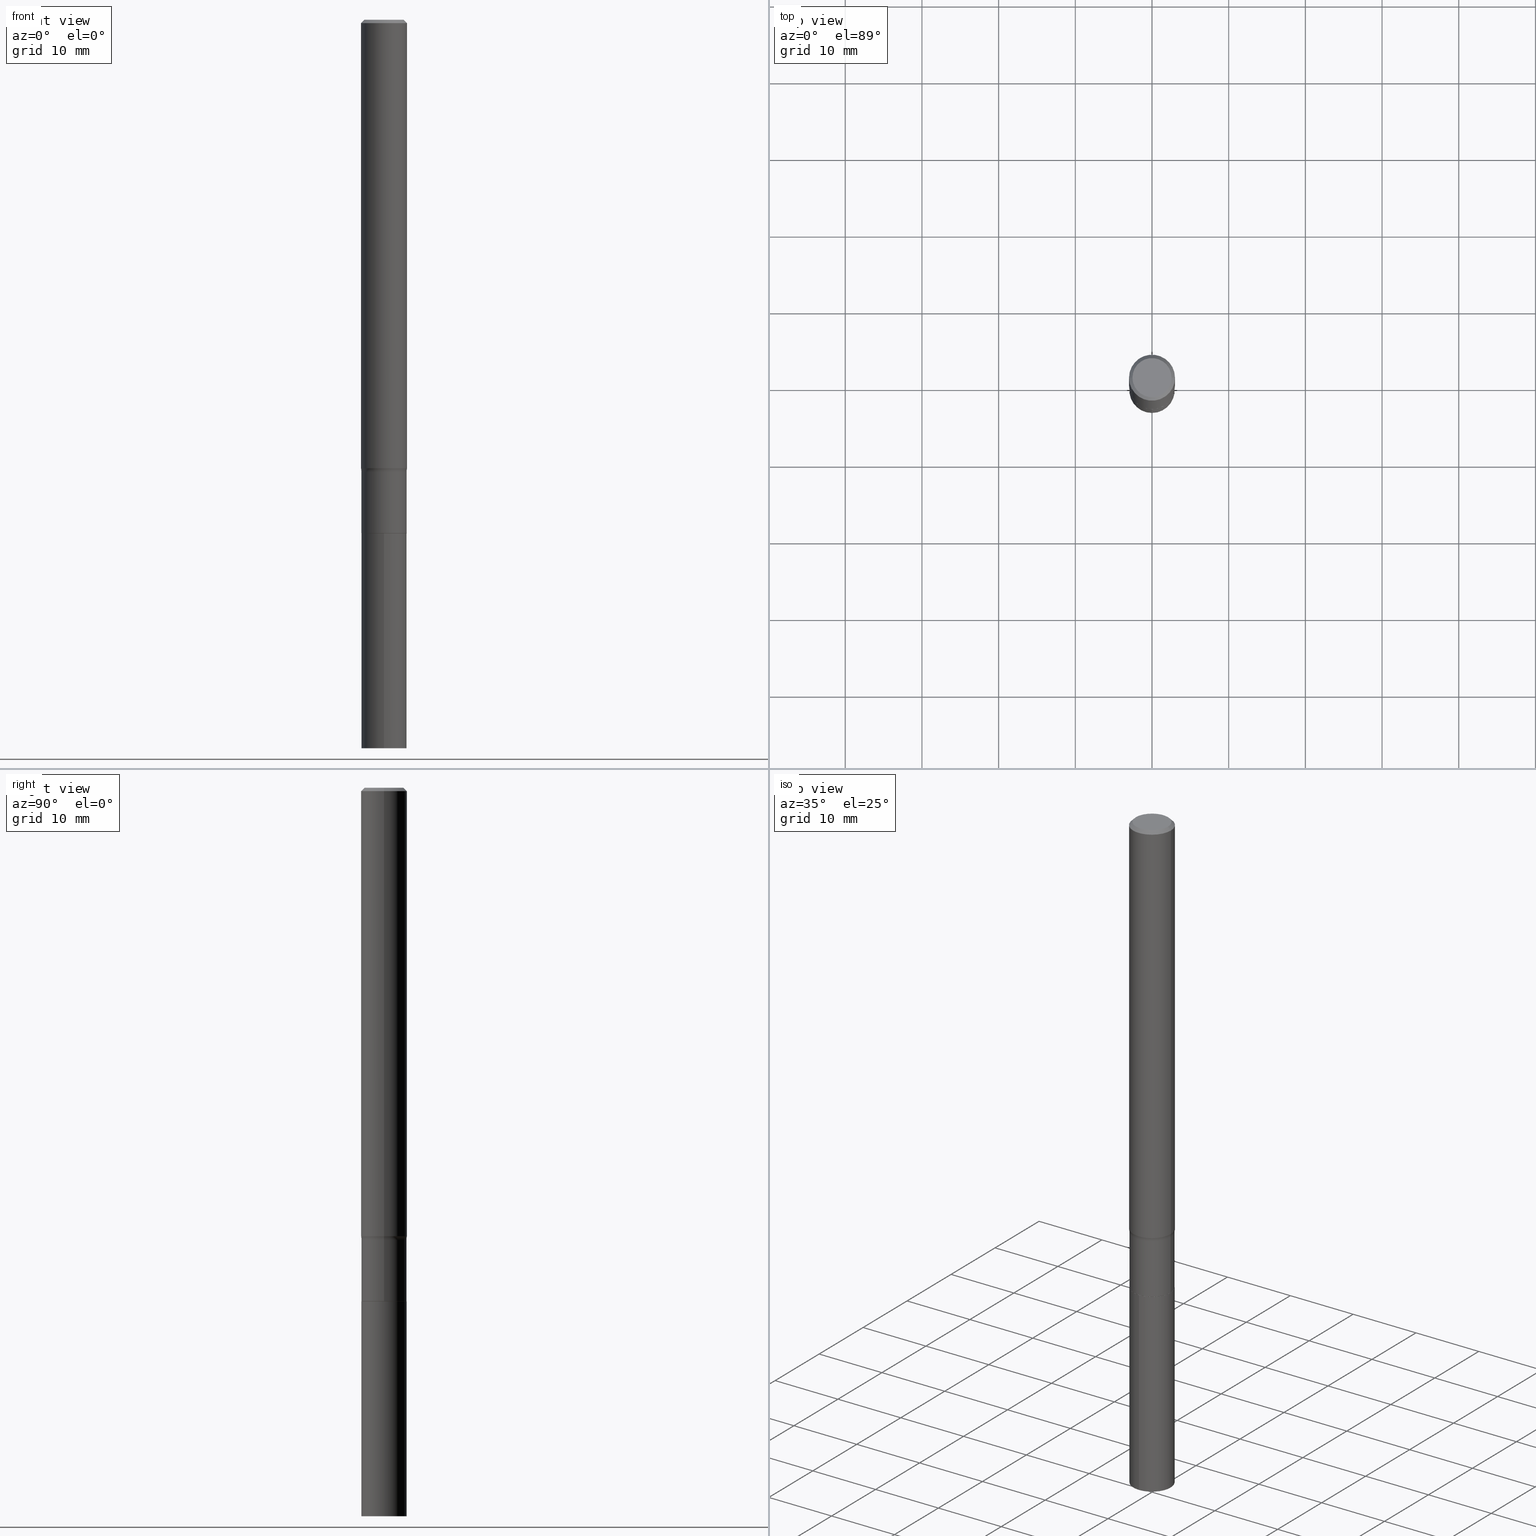
[diagram: canonical four-view strip — front | top / right | iso, engineering-drawing reading convention]
A machine part, canonical four-view strip (front | top / right | iso — engineering-drawing reading convention). The complete STEP part file that produces these views, byte-faithful:
ISO-10303-21;
HEADER;
FILE_DESCRIPTION (( 'STEP AP203' ),
    '1' );
FILE_NAME ('67845.STEP',
    '2024-04-19T16:43:05',
    ( '' ),
    ( '' ),
    'SwSTEP 2.0',
    'SolidWorks 2023',
    '' );
FILE_SCHEMA (( 'CONFIG_CONTROL_DESIGN' ));
ENDSEC;

DATA;
#1 = CARTESIAN_POINT ( 'NONE',  ( -0.1156500000000000028, -8.382500431551745365E-15, -2.636200000000000099 ) ) ;
#2 = DIRECTION ( 'NONE',  ( 1.000000000000000000, -6.982962677686273810E-15, 0.000000000000000000 ) ) ;
#3 = ORIENTED_EDGE ( 'NONE', *, *, #358, .T. ) ;
#4 = CARTESIAN_POINT ( 'NONE',  ( 6.446744866865257163E-29, -9.204243105458301447E-15, -2.636200000000000099 ) ) ;
#5 = VERTEX_POINT ( 'NONE', #296 ) ;
#6 = AXIS2_PLACEMENT_3D ( 'NONE', #98, #130, #60 ) ;
#7 = TOROIDAL_SURFACE ( 'NONE', #92, 0.1961499999999999633, 0.07999999999999998779 ) ;
#8 = AXIS2_PLACEMENT_3D ( 'NONE', #76, #142, #394 ) ;
#9 = DIRECTION ( 'NONE',  ( 1.000000000000000000, -6.982962677686265922E-15, 4.876176775795935232E-29 ) ) ;
#10 = EDGE_LOOP ( 'NONE', ( #198, #72, #467, #400 ) ) ;
#11 = CARTESIAN_POINT ( 'NONE',  ( -0.1003850000000000159, 7.319105043583386689E-16, -2.868857591683090262E-17 ) ) ;
#12 = PRODUCT_RELATED_PRODUCT_CATEGORY ( 'detail', '', ( #149 ) ) ;
#13 = DIRECTION ( 'NONE',  ( 2.445468806185136597E-29, -3.491481338843145583E-15, -1.000000000000000000 ) ) ;
#14 = PERSON_AND_ORGANIZATION ( #65, #177 ) ;
#15 = AXIS2_PLACEMENT_3D ( 'NONE', #4, #293, #261 ) ;
#16 = LINE ( 'NONE', #88, #391 ) ;
#17 = CALENDAR_DATE ( 2024, 19, 4 ) ;
#18 = CC_DESIGN_PERSON_AND_ORGANIZATION_ASSIGNMENT ( #14, #123, ( #149 ) ) ;
#19 = CARTESIAN_POINT ( 'NONE',  ( 0.000000000000000000, 0.000000000000000000, 0.000000000000000000 ) ) ;
#20 = CARTESIAN_POINT ( 'NONE',  ( -0.1156500000000000028, -8.379851204377634953E-15, -2.636200000000000099 ) ) ;
#21 = SECURITY_CLASSIFICATION_LEVEL ( 'unclassified' ) ;
#22 = VERTEX_POINT ( 'NONE', #292 ) ;
#23 = DIRECTION ( 'NONE',  ( 1.000000000000000000, -6.982962677686269866E-15, 0.000000000000000000 ) ) ;
#24 = VECTOR ( 'NONE', #262, 39.37007874015748143 ) ;
#25 = DIRECTION ( 'NONE',  ( 0.000000000000000000, 0.000000000000000000, 1.000000000000000000 ) ) ;
#26 = LINE ( 'NONE', #277, #244 ) ;
#27 = CARTESIAN_POINT ( 'NONE',  ( 7.015701749847187307E-46, -1.001656274515824970E-31, -2.868857591682589212E-17 ) ) ;
#28 = ORIENTED_EDGE ( 'NONE', *, *, #166, .T. ) ;
#29 = FACE_OUTER_BOUND ( 'NONE', #438, .T. ) ;
#30 = AXIS2_PLACEMENT_3D ( 'NONE', #336, #13, #370 ) ;
#31 = ORIENTED_EDGE ( 'NONE', *, *, #253, .F. ) ;
#32 = DIRECTION ( 'NONE',  ( -2.439470355359473370E-29, 3.500071461836113425E-15, 1.000000000000000000 ) ) ;
#33 = EDGE_CURVE ( 'NONE', #215, #22, #85, .T. ) ;
#34 = ORIENTED_EDGE ( 'NONE', *, *, #419, .F. ) ;
#35 = CARTESIAN_POINT ( 'NONE',  ( 7.015701749847187307E-46, -1.001656274515824970E-31, -2.868857591682589212E-17 ) ) ;
#36 = ORIENTED_EDGE ( 'NONE', *, *, #434, .T. ) ;
#37 = CARTESIAN_POINT ( 'NONE',  ( -8.110711150131954537E-16, -0.1161500000000092042, -2.636199999999999655 ) ) ;
#38 = ORIENTED_EDGE ( 'NONE', *, *, #408, .F. ) ;
#39 = AXIS2_PLACEMENT_3D ( 'NONE', #19, #25, #160 ) ;
#40 = EDGE_CURVE ( 'NONE', #148, #22, #465, .T. ) ;
#41 = DIRECTION ( 'NONE',  ( -2.438088387897960049E-29, 3.491481338843145188E-15, 1.000000000000000000 ) ) ;
#42 = DIRECTION ( 'NONE',  ( -2.439470355359473651E-29, 3.500071461836113425E-15, 1.000000000000000000 ) ) ;
#43 = ORIENTED_EDGE ( 'NONE', *, *, #172, .F. ) ;
#44 = CC_DESIGN_PERSON_AND_ORGANIZATION_ASSIGNMENT ( #163, #268, ( #330 ) ) ;
#45 = CARTESIAN_POINT ( 'NONE',  ( -0.1161500000000000171, -7.826769944134901983E-15, -2.635699999999999932 ) ) ;
#46 = FACE_OUTER_BOUND ( 'NONE', #175, .T. ) ;
#47 = AXIS2_PLACEMENT_3D ( 'NONE', #276, #237, #381 ) ;
#48 = CARTESIAN_POINT ( 'NONE',  ( 6.446744866865257163E-29, -9.204243105458301447E-15, -2.636200000000000099 ) ) ;
#49 = DIRECTION ( 'NONE',  ( 6.982962677686265922E-15, 1.000000000000000000, -3.500071461836113425E-15 ) ) ;
#50 = EDGE_CURVE ( 'NONE', #254, #246, #94, .T. ) ;
#51 = CARTESIAN_POINT ( 'NONE',  ( 6.446744866865257163E-29, -9.204243105458301447E-15, -2.636200000000000099 ) ) ;
#52 = CARTESIAN_POINT ( 'NONE',  ( 9.139920139182118548E-29, -1.306832199932537301E-14, -3.740200000000000635 ) ) ;
#53 = COORDINATED_UNIVERSAL_TIME_OFFSET ( 5, 0, .BEHIND. ) ;
#54 = ADVANCED_FACE ( 'NONE', ( #109 ), #217, .F. ) ;
#55 = CIRCLE ( 'NONE', #99, 0.1181000000000002603 ) ;
#56 = CYLINDRICAL_SURFACE ( 'NONE', #454, 0.1181000000000001354 ) ;
#57 = CARTESIAN_POINT ( 'NONE',  ( -8.110711150131686325E-16, -0.1161500000000130761, -3.740200000000000191 ) ) ;
#58 = PERSON_AND_ORGANIZATION_ROLE ( 'design_supplier' ) ;
#59 = MANIFOLD_SOLID_BREP ( 'Body-Move/Copy2[2]', #201 ) ;
#60 = DIRECTION ( 'NONE',  ( -1.000000000000000000, 6.982962677686267499E-15, 0.000000000000000000 ) ) ;
#61 = EDGE_CURVE ( 'NONE', #393, #148, #333, .T. ) ;
#62 = LINE ( 'NONE', #241, #460 ) ;
#63 = AXIS2_PLACEMENT_3D ( 'NONE', #78, #334, #402 ) ;
#64 = CARTESIAN_POINT ( 'NONE',  ( 0.000000000000000000, 0.000000000000000000, 0.000000000000000000 ) ) ;
#65 = PERSON ( 'UNSPECIFIED', 'UNSPECIFIED', 'UNSPECIFIED', ('UNSPECIFIED'), ('UNSPECIFIED'), ('UNSPECIFIED') ) ;
#66 = ORIENTED_EDGE ( 'NONE', *, *, #205, .T. ) ;
#67 = MANIFOLD_SOLID_BREP ( 'Body-Move/Copy2[1]', #135 ) ;
#68 = PLANE ( 'NONE',  #284 ) ;
#69 = AXIS2_PLACEMENT_3D ( 'NONE', #428, #146, #287 ) ;
#70 = LOCAL_TIME ( 12, 43, 5.000000000000000000, #53 ) ;
#71 = DESIGN_CONTEXT ( 'detailed design', #452, 'design' ) ;
#72 = ORIENTED_EDGE ( 'NONE', *, *, #61, .T. ) ;
#73 = DIRECTION ( 'NONE',  ( -2.445468806185136597E-29, 3.491481338843145583E-15, 1.000000000000000000 ) ) ;
#74 = EDGE_CURVE ( 'NONE', #258, #367, #417, .T. ) ;
#75 = ORIENTED_EDGE ( 'NONE', *, *, #40, .F. ) ;
#76 = CARTESIAN_POINT ( 'NONE',  ( 4.332147990156998495E-31, -6.185159191760674092E-17, -0.01771500000000011954 ) ) ;
#77 = ORIENTED_EDGE ( 'NONE', *, *, #129, .T. ) ;
#78 = CARTESIAN_POINT ( 'NONE',  ( 5.674465817871991056E-29, -8.101633298651635617E-15, -2.320400000000000240 ) ) ;
#79 = ADVANCED_FACE ( 'NONE', ( #29 ), #138, .T. ) ;
#80 = DIRECTION ( 'NONE',  ( 1.000000000000000000, -6.982962677686267499E-15, 0.000000000000000000 ) ) ;
#81 = FACE_OUTER_BOUND ( 'NONE', #337, .T. ) ;
#82 = ORIENTED_EDGE ( 'NONE', *, *, #50, .T. ) ;
#83 = AXIS2_PLACEMENT_3D ( 'NONE', #375, #116, #445 ) ;
#84 = LOCAL_TIME ( 12, 43, 5.000000000000000000, #309 ) ;
#85 = CIRCLE ( 'NONE', #264, 0.1161500000000000032 ) ;
#86 = CARTESIAN_POINT ( 'NONE',  ( 0.000000000000000000, 0.000000000000000000, 0.000000000000000000 ) ) ;
#87 = DIRECTION ( 'NONE',  ( 1.000000000000000000, -6.982962677686264344E-15, 4.883557194083112340E-29 ) ) ;
#88 = CARTESIAN_POINT ( 'NONE',  ( 8.252953875854206811E-16, 0.1161499999999908023, -2.636200000000000543 ) ) ;
#89 = FACE_OUTER_BOUND ( 'NONE', #344, .T. ) ;
#90 = ORIENTED_EDGE ( 'NONE', *, *, #331, .F. ) ;
#91 = CC_DESIGN_DATE_AND_TIME_ASSIGNMENT ( #132, #174, ( #352 ) ) ;
#92 = AXIS2_PLACEMENT_3D ( 'NONE', #412, #379, #87 ) ;
#93 = FACE_OUTER_BOUND ( 'NONE', #466, .T. ) ;
#94 = CIRCLE ( 'NONE', #8, 0.1181000000000000105 ) ;
#95 = APPROVAL_DATE_TIME ( #240, #259 ) ;
#96 = FACE_OUTER_BOUND ( 'NONE', #436, .T. ) ;
#97 = DIRECTION ( 'NONE',  ( 2.438088387897960049E-29, -3.491481338843145188E-15, -1.000000000000000000 ) ) ;
#98 = CARTESIAN_POINT ( 'NONE',  ( 4.332147990156998495E-31, -6.185159191760674092E-17, -0.01771500000000011954 ) ) ;
#99 = AXIS2_PLACEMENT_3D ( 'NONE', #213, #382, #377 ) ;
#100 = PERSON_AND_ORGANIZATION ( #65, #177 ) ;
#101 = ORIENTED_EDGE ( 'NONE', *, *, #383, .T. ) ;
#102 = EDGE_LOOP ( 'NONE', ( #185, #431, #66, #288 ) ) ;
#103 = VECTOR ( 'NONE', #329, 39.37007874015748143 ) ;
#104 = EDGE_LOOP ( 'NONE', ( #223, #380, #167, #347 ) ) ;
#105 = APPROVAL_PERSON_ORGANIZATION ( #100, #342, #313 ) ;
#106 = ADVANCED_FACE ( 'NONE', ( #251 ), #68, .F. ) ;
#107 = CARTESIAN_POINT ( 'NONE',  ( 6.446744866865257163E-29, -9.204243105458301447E-15, -2.636200000000000099 ) ) ;
#108 = VERTEX_POINT ( 'NONE', #37 ) ;
#109 = FACE_OUTER_BOUND ( 'NONE', #395, .T. ) ;
#110 = EDGE_LOOP ( 'NONE', ( #90, #373, #157, #195 ) ) ;
#111 = CIRCLE ( 'NONE', #312, 0.1181000000000000105 ) ;
#112 =( GEOMETRIC_REPRESENTATION_CONTEXT ( 3 ) GLOBAL_UNCERTAINTY_ASSIGNED_CONTEXT ( ( #321 ) ) GLOBAL_UNIT_ASSIGNED_CONTEXT ( ( #270, #203, #343 ) ) REPRESENTATION_CONTEXT ( 'NONE', 'WORKASPACE' ) );
#113 = DIRECTION ( 'NONE',  ( -2.439470355359473651E-29, 3.500071461836113425E-15, 1.000000000000000000 ) ) ;
#114 = EDGE_CURVE ( 'NONE', #367, #254, #137, .T. ) ;
#115 = DIRECTION ( 'NONE',  ( -2.445468806185136597E-29, 3.491481338843145583E-15, 1.000000000000000000 ) ) ;
#116 = DIRECTION ( 'NONE',  ( -2.445468806185136597E-29, 3.491481338843145583E-15, 1.000000000000000000 ) ) ;
#117 = CIRCLE ( 'NONE', #369, 0.1161500000000000171 ) ;
#118 = AXIS2_PLACEMENT_3D ( 'NONE', #385, #42, #404 ) ;
#119 = LINE ( 'NONE', #188, #103 ) ;
#120 = EDGE_CURVE ( 'NONE', #393, #215, #320, .T. ) ;
#121 = APPROVAL_STATUS ( 'not_yet_approved' ) ;
#122 = CYLINDRICAL_SURFACE ( 'NONE', #441, 0.1161500000000000032 ) ;
#123 = PERSON_AND_ORGANIZATION_ROLE ( 'design_owner' ) ;
#124 = DIRECTION ( 'NONE',  ( 1.000000000000000000, -6.982962677686266711E-15, 4.876176775795936353E-29 ) ) ;
#125 = AXIS2_PLACEMENT_3D ( 'NONE', #435, #73, #399 ) ;
#126 = AXIS2_PLACEMENT_3D ( 'NONE', #208, #458, #279 ) ;
#127 = CARTESIAN_POINT ( 'NONE',  ( -0.1181000000000002326, -7.201187436172869166E-15, -2.302844445323487310 ) ) ;
#128 = DATE_TIME_ROLE ( 'creation_date' ) ;
#129 = EDGE_CURVE ( 'NONE', #405, #145, #378, .T. ) ;
#130 = DIRECTION ( 'NONE',  ( 2.445468806185136597E-29, -3.491481338843145583E-15, -1.000000000000000000 ) ) ;
#131 = FACE_OUTER_BOUND ( 'NONE', #361, .T. ) ;
#132 = DATE_AND_TIME ( #457, #84 ) ;
#133 = CIRCLE ( 'NONE', #199, 0.1156500000000000028 ) ;
#134 = COORDINATED_UNIVERSAL_TIME_OFFSET ( 5, 0, .BEHIND. ) ;
#135 = CLOSED_SHELL ( 'NONE', ( #79, #54, #275, #439 ) ) ;
#136 = CALENDAR_DATE ( 2024, 19, 4 ) ;
#137 = LINE ( 'NONE', #280, #468 ) ;
#138 = CYLINDRICAL_SURFACE ( 'NONE', #318, 0.1161500000000000032 ) ;
#139 = ORIENTED_EDGE ( 'NONE', *, *, #74, .F. ) ;
#140 = EDGE_CURVE ( 'NONE', #145, #290, #271, .T. ) ;
#141 = CIRCLE ( 'NONE', #349, 0.1161500000000000032 ) ;
#142 = DIRECTION ( 'NONE',  ( -2.445468806185136597E-29, 3.491481338843145583E-15, 1.000000000000000000 ) ) ;
#143 = CC_DESIGN_APPROVAL ( #342, ( #352 ) ) ;
#144 = DIRECTION ( 'NONE',  ( -2.445468806185136597E-29, 3.491481338843145583E-15, 1.000000000000000000 ) ) ;
#145 = VERTEX_POINT ( 'NONE', #357 ) ;
#146 = DIRECTION ( 'NONE',  ( -6.982962677686266711E-15, -1.000000000000000000, 3.491481338843145583E-15 ) ) ;
#147 = DIRECTION ( 'NONE',  ( 2.439470355359473370E-29, -3.500071461836113425E-15, -1.000000000000000000 ) ) ;
#148 = VERTEX_POINT ( 'NONE', #437 ) ;
#149 = PRODUCT ( '67845', '67845', '', ( #209 ) ) ;
#150 = LINE ( 'NONE', #291, #243 ) ;
#151 = EDGE_CURVE ( 'NONE', #5, #108, #141, .T. ) ;
#152 = CIRCLE ( 'NONE', #15, 0.1161500000000000032 ) ;
#153 = APPROVAL_PERSON_ORGANIZATION ( #169, #362, #206 ) ;
#154 = DIRECTION ( 'NONE',  ( -6.982962677686265922E-15, -1.000000000000000000, 4.703999989090422785E-15 ) ) ;
#155 = PRODUCT_DEFINITION_SHAPE ( 'NONE', 'NONE',  #401 ) ;
#156 = CYLINDRICAL_SURFACE ( 'NONE', #328, 0.1161499999999999894 ) ;
#157 = ORIENTED_EDGE ( 'NONE', *, *, #140, .T. ) ;
#158 = EDGE_CURVE ( 'NONE', #108, #5, #152, .T. ) ;
#159 = CARTESIAN_POINT ( 'NONE',  ( 4.332147990156998495E-31, -6.185159191760674092E-17, -0.01771500000000011954 ) ) ;
#160 = DIRECTION ( 'NONE',  ( 1.000000000000000000, 0.000000000000000000, 0.000000000000000000 ) ) ;
#161 = AXIS2_PLACEMENT_3D ( 'NONE', #233, #173, #245 ) ;
#162 = FACE_OUTER_BOUND ( 'NONE', #10, .T. ) ;
#163 = PERSON_AND_ORGANIZATION ( #65, #177 ) ;
#164 = CALENDAR_DATE ( 2024, 19, 4 ) ;
#165 = APPROVAL_STATUS ( 'not_yet_approved' ) ;
#166 = EDGE_CURVE ( 'NONE', #22, #215, #176, .T. ) ;
#167 = ORIENTED_EDGE ( 'NONE', *, *, #419, .T. ) ;
#168 = AXIS2_PLACEMENT_3D ( 'NONE', #51, #194, #411 ) ;
#169 = PERSON_AND_ORGANIZATION ( #65, #177 ) ;
#170 = DIRECTION ( 'NONE',  ( 1.000000000000000000, -6.982962677686266711E-15, 4.875668750515085695E-29 ) ) ;
#171 = ORIENTED_EDGE ( 'NONE', *, *, #61, .F. ) ;
#172 = EDGE_CURVE ( 'NONE', #258, #246, #224, .T. ) ;
#173 = DIRECTION ( 'NONE',  ( -2.445468806185136597E-29, 3.491481338843145583E-15, 1.000000000000000000 ) ) ;
#174 = DATE_TIME_ROLE ( 'classification_date' ) ;
#175 = EDGE_LOOP ( 'NONE', ( #415, #355, #283, #34 ) ) ;
#176 = CIRCLE ( 'NONE', #83, 0.1161500000000000032 ) ;
#177 = ORGANIZATION ( 'UNSPECIFIED', 'UNSPECIFIED', '' ) ;
#178 = DIRECTION ( 'NONE',  ( -6.982962677686265922E-15, -1.000000000000000000, 4.703999989090422785E-15 ) ) ;
#179 = ORIENTED_EDGE ( 'NONE', *, *, #74, .T. ) ;
#180 = ORIENTED_EDGE ( 'NONE', *, *, #50, .F. ) ;
#181 = AXIS2_PLACEMENT_3D ( 'NONE', #323, #144, #2 ) ;
#182 = DIRECTION ( 'NONE',  ( 0.7071067811865456854, -7.319954787623249734E-15, -0.7071067811865493491 ) ) ;
#183 = CIRCLE ( 'NONE', #118, 0.1161500000000000171 ) ;
#184 = EDGE_LOOP ( 'NONE', ( #192, #171 ) ) ;
#185 = ORIENTED_EDGE ( 'NONE', *, *, #286, .F. ) ;
#186 = ADVANCED_FACE ( 'NONE', ( #368 ), #449, .T. ) ;
#187 = DIRECTION ( 'NONE',  ( -2.439470355359473651E-29, 3.500071461836113425E-15, 1.000000000000000000 ) ) ;
#188 = CARTESIAN_POINT ( 'NONE',  ( 0.1181000000000001354, -8.246878922347490515E-16, 5.758764772215007447E-30 ) ) ;
#189 = ORIENTED_EDGE ( 'NONE', *, *, #388, .T. ) ;
#190 = AXIS2_PLACEMENT_3D ( 'NONE', #384, #97, #416 ) ;
#191 = FACE_OUTER_BOUND ( 'NONE', #397, .T. ) ;
#192 = ORIENTED_EDGE ( 'NONE', *, *, #294, .F. ) ;
#193 = EDGE_CURVE ( 'NONE', #22, #290, #150, .T. ) ;
#194 = DIRECTION ( 'NONE',  ( -2.445468806185136597E-29, 3.491481338843145583E-15, 1.000000000000000000 ) ) ;
#195 = ORIENTED_EDGE ( 'NONE', *, *, #212, .T. ) ;
#196 = CARTESIAN_POINT ( 'NONE',  ( 0.1161499999999999755, -8.912704413664895363E-15, -2.320400000000000240 ) ) ;
#197 = COORDINATED_UNIVERSAL_TIME_OFFSET ( 5, 0, .BEHIND. ) ;
#198 = ORIENTED_EDGE ( 'NONE', *, *, #120, .F. ) ;
#199 = AXIS2_PLACEMENT_3D ( 'NONE', #300, #453, #23 ) ;
#200 = CC_DESIGN_APPROVAL ( #259, ( #330 ) ) ;
#201 = CLOSED_SHELL ( 'NONE', ( #350, #186, #306, #446, #242, #227, #356, #423, #301, #315, #106, #282 ) ) ;
#202 = FACE_OUTER_BOUND ( 'NONE', #310, .T. ) ;
#203 =( NAMED_UNIT ( * ) PLANE_ANGLE_UNIT ( ) SI_UNIT ( $, .RADIAN. ) );
#204 = DIRECTION ( 'NONE',  ( 1.000000000000000000, -6.982962677686264344E-15, 4.883557194083112340E-29 ) ) ;
#205 = EDGE_CURVE ( 'NONE', #332, #108, #450, .T. ) ;
#206 = APPROVAL_ROLE ( '' ) ;
#207 = VERTEX_POINT ( 'NONE', #403 ) ;
#208 = CARTESIAN_POINT ( 'NONE',  ( 0.000000000000000000, 0.000000000000000000, 0.000000000000000000 ) ) ;
#209 = MECHANICAL_CONTEXT ( 'NONE', #229, 'mechanical' ) ;
#210 = AXIS2_PLACEMENT_3D ( 'NONE', #35, #360, #289 ) ;
#211 = CARTESIAN_POINT ( 'NONE',  ( 5.674465817871991056E-29, -8.101633298651635617E-15, -2.320400000000000240 ) ) ;
#212 = EDGE_CURVE ( 'NONE', #290, #440, #406, .T. ) ;
#213 = CARTESIAN_POINT ( 'NONE',  ( 5.631534256535301615E-29, -8.040338407105549729E-15, -2.302844445323487310 ) ) ;
#214 = ORIENTED_EDGE ( 'NONE', *, *, #114, .F. ) ;
#215 = VERTEX_POINT ( 'NONE', #45 ) ;
#216 = AXIS2_PLACEMENT_3D ( 'NONE', #420, #308, #456 ) ;
#217 = PLANE ( 'NONE',  #273 ) ;
#218 = ORIENTED_EDGE ( 'NONE', *, *, #253, .T. ) ;
#219 = ORIENTED_EDGE ( 'NONE', *, *, #236, .F. ) ;
#220 = ORIENTED_EDGE ( 'NONE', *, *, #172, .T. ) ;
#221 = AXIS2_PLACEMENT_3D ( 'NONE', #211, #239, #204 ) ;
#222 = CARTESIAN_POINT ( 'NONE',  ( 6.446744866865257163E-29, -9.204243105458301447E-15, -2.636200000000000099 ) ) ;
#223 = ORIENTED_EDGE ( 'NONE', *, *, #129, .F. ) ;
#224 = LINE ( 'NONE', #297, #278 ) ;
#225 = CARTESIAN_POINT ( 'NONE',  ( 0.000000000000000000, 0.000000000000000000, 0.000000000000000000 ) ) ;
#226 = CARTESIAN_POINT ( 'NONE',  ( 0.1181000000000000105, -8.865394841523550528E-16, -0.01771500000000011954 ) ) ;
#227 = ADVANCED_FACE ( 'NONE', ( #46 ), #326, .T. ) ;
#228 = DIRECTION ( 'NONE',  ( -2.439470355359473651E-29, 3.500071461836113425E-15, 1.000000000000000000 ) ) ;
#229 = APPLICATION_CONTEXT ( 'configuration controlled 3d designs of mechanical parts and assemblies' ) ;
#230 = EDGE_LOOP ( 'NONE', ( #38, #311, #82, #43 ) ) ;
#231 = DIRECTION ( 'NONE',  ( -2.439470355359473651E-29, 3.500071461836113425E-15, 1.000000000000000000 ) ) ;
#232 = APPLICATION_PROTOCOL_DEFINITION ( 'international standard', 'config_control_design', 1994, #452 ) ;
#233 = CARTESIAN_POINT ( 'NONE',  ( 6.446744866865257163E-29, -9.204243105458301447E-15, -2.636200000000000099 ) ) ;
#234 = LENGTH_MEASURE_WITH_UNIT ( LENGTH_MEASURE( 0.02539999999999999897 ), #302 );
#235 = CONICAL_SURFACE ( 'NONE', #168, 0.1156500000000000028, 0.7853981633972775267 ) ;
#236 = EDGE_CURVE ( 'NONE', #145, #254, #119, .T. ) ;
#237 = DIRECTION ( 'NONE',  ( 7.105427357601001859E-15, 1.000000000000000000, -3.491481338843145583E-15 ) ) ;
#238 = PERSON_AND_ORGANIZATION ( #65, #177 ) ;
#239 = DIRECTION ( 'NONE',  ( -2.445468806185136597E-29, 3.491481338843145583E-15, 1.000000000000000000 ) ) ;
#240 = DATE_AND_TIME ( #17, #461 ) ;
#241 = CARTESIAN_POINT ( 'NONE',  ( -0.1161499999999999894, 8.252953875853562903E-16, -5.713343107331072832E-30 ) ) ;
#242 = ADVANCED_FACE ( 'NONE', ( #191 ), #156, .T. ) ;
#243 = VECTOR ( 'NONE', #260, 39.37007874015748143 ) ;
#244 = VECTOR ( 'NONE', #422, 39.37007874015748143 ) ;
#245 = DIRECTION ( 'NONE',  ( 1.000000000000000000, -6.982962677686269866E-15, 0.000000000000000000 ) ) ;
#246 = VERTEX_POINT ( 'NONE', #414 ) ;
#247 = DIMENSIONAL_EXPONENTS ( 1.000000000000000000, 0.000000000000000000, 0.000000000000000000, 0.000000000000000000, 0.000000000000000000, 0.000000000000000000, 0.000000000000000000 ) ;
#248 = DIRECTION ( 'NONE',  ( -2.439470355359473651E-29, 3.500071461836113425E-15, 1.000000000000000000 ) ) ;
#249 = EDGE_CURVE ( 'NONE', #207, #332, #117, .T. ) ;
#250 = ORIENTED_EDGE ( 'NONE', *, *, #434, .F. ) ;
#251 = FACE_OUTER_BOUND ( 'NONE', #184, .T. ) ;
#252 = ORIENTED_EDGE ( 'NONE', *, *, #205, .F. ) ;
#253 = EDGE_CURVE ( 'NONE', #246, #254, #111, .T. ) ;
#254 = VERTEX_POINT ( 'NONE', #226 ) ;
#255 = CONICAL_SURFACE ( 'NONE', #161, 0.1156500000000000028, 0.7853981633972775267 ) ;
#256 = CARTESIAN_POINT ( 'NONE',  ( -3.139212806744522450E-29, -3.065273926273713566E-14, -3.740200000000000635 ) ) ;
#257 = AXIS2_PLACEMENT_3D ( 'NONE', #27, #274, #170 ) ;
#258 = VERTEX_POINT ( 'NONE', #11 ) ;
#259 = APPROVAL ( #165, 'UNSPECIFIED' ) ;
#260 = DIRECTION ( 'NONE',  ( -2.445468806185136877E-29, 3.491481338843145188E-15, 1.000000000000000000 ) ) ;
#261 = DIRECTION ( 'NONE',  ( -6.982962677686265922E-15, -1.000000000000000000, 4.703999989090422785E-15 ) ) ;
#262 = DIRECTION ( 'NONE',  ( -2.439470355359473651E-29, 3.500071461836113425E-15, 1.000000000000000000 ) ) ;
#263 = PERSON_AND_ORGANIZATION ( #65, #177 ) ;
#264 = AXIS2_PLACEMENT_3D ( 'NONE', #444, #448, #316 ) ;
#265 = DIRECTION ( 'NONE',  ( -2.445468806185136597E-29, 3.491481338843145583E-15, 1.000000000000000000 ) ) ;
#266 = ORIENTED_EDGE ( 'NONE', *, *, #236, .T. ) ;
#267 = DIRECTION ( 'NONE',  ( -6.982962677686265922E-15, -1.000000000000000000, 4.703999989090422785E-15 ) ) ;
#268 = PERSON_AND_ORGANIZATION_ROLE ( 'creator' ) ;
#269 = PLANE ( 'NONE',  #190 ) ;
#270 =( CONVERSION_BASED_UNIT ( 'INCH', #234 ) LENGTH_UNIT ( ) NAMED_UNIT ( #247 ) );
#271 = CIRCLE ( 'NONE', #69, 0.07999999999999996003 ) ;
#272 = LOCAL_TIME ( 12, 43, 5.000000000000000000, #134 ) ;
#273 = AXIS2_PLACEMENT_3D ( 'NONE', #256, #32, #364 ) ;
#274 = DIRECTION ( 'NONE',  ( -2.445468806185136597E-29, 3.491481338843145583E-15, 1.000000000000000000 ) ) ;
#275 = ADVANCED_FACE ( 'NONE', ( #295 ), #122, .T. ) ;
#276 = CARTESIAN_POINT ( 'NONE',  ( -0.1961499999999999633, -6.707903722458199561E-15, -2.320400000000000240 ) ) ;
#277 = CARTESIAN_POINT ( 'NONE',  ( -0.1181000000000001354, 8.391509709326792818E-16, -5.809262341591050090E-30 ) ) ;
#278 = VECTOR ( 'NONE', #366, 39.37007874015748143 ) ;
#279 = DIRECTION ( 'NONE',  ( 1.000000000000000000, -6.982962677686266711E-15, 4.876176775795936353E-29 ) ) ;
#280 = CARTESIAN_POINT ( 'NONE',  ( 0.1181000000000000105, -8.720764054544248225E-16, -0.01771500000000011954 ) ) ;
#281 = ORIENTED_EDGE ( 'NONE', *, *, #120, .T. ) ;
#282 = ADVANCED_FACE ( 'NONE', ( #162 ), #235, .T. ) ;
#283 = ORIENTED_EDGE ( 'NONE', *, *, #193, .T. ) ;
#284 = AXIS2_PLACEMENT_3D ( 'NONE', #107, #41, #463 ) ;
#285 = ORIENTED_EDGE ( 'NONE', *, *, #166, .F. ) ;
#286 = EDGE_CURVE ( 'NONE', #207, #5, #16, .T. ) ;
#287 = DIRECTION ( 'NONE',  ( 1.000000000000000000, -6.982962677686262766E-15, 0.000000000000000000 ) ) ;
#288 = ORIENTED_EDGE ( 'NONE', *, *, #151, .F. ) ;
#289 = DIRECTION ( 'NONE',  ( 1.000000000000000000, -6.982962677686266711E-15, 4.875668750515085695E-29 ) ) ;
#290 = VERTEX_POINT ( 'NONE', #196 ) ;
#291 = CARTESIAN_POINT ( 'NONE',  ( 0.1161499999999999894, -8.110711150132597459E-16, 5.663679325086978398E-30 ) ) ;
#292 = CARTESIAN_POINT ( 'NONE',  ( 0.1161500000000000032, -1.001356847980213890E-14, -2.635699999999999932 ) ) ;
#293 = DIRECTION ( 'NONE',  ( -2.439470355359473651E-29, 3.500071461836113425E-15, 1.000000000000000000 ) ) ;
#294 = EDGE_CURVE ( 'NONE', #148, #393, #133, .T. ) ;
#295 = FACE_OUTER_BOUND ( 'NONE', #102, .T. ) ;
#296 = CARTESIAN_POINT ( 'NONE',  ( 8.252953875854478968E-16, 0.1161499999999908023, -2.636200000000000543 ) ) ;
#297 = CARTESIAN_POINT ( 'NONE',  ( -0.1181000000000000105, 7.628363003171413738E-16, -0.01771500000000011954 ) ) ;
#298 = DATE_AND_TIME ( #164, #70 ) ;
#299 = LOCAL_TIME ( 12, 43, 5.000000000000000000, #197 ) ;
#300 = CARTESIAN_POINT ( 'NONE',  ( 6.446744866865257163E-29, -9.204243105458301447E-15, -2.636200000000000099 ) ) ;
#301 = ADVANCED_FACE ( 'NONE', ( #202 ), #433, .T. ) ;
#302 =( LENGTH_UNIT ( ) NAMED_UNIT ( * ) SI_UNIT ( $, .METRE. ) );
#303 = CALENDAR_DATE ( 2024, 19, 4 ) ;
#304 = FACE_OUTER_BOUND ( 'NONE', #110, .T. ) ;
#305 = PERSON_AND_ORGANIZATION ( #65, #177 ) ;
#306 = ADVANCED_FACE ( 'NONE', ( #93 ), #56, .T. ) ;
#307 = PERSON_AND_ORGANIZATION_ROLE ( 'creator' ) ;
#308 = DIRECTION ( 'NONE',  ( -2.445468806185136597E-29, 3.491481338843145583E-15, 1.000000000000000000 ) ) ;
#309 = COORDINATED_UNIVERSAL_TIME_OFFSET ( 5, 0, .BEHIND. ) ;
#310 = EDGE_LOOP ( 'NONE', ( #214, #139, #220, #218 ) ) ;
#311 = ORIENTED_EDGE ( 'NONE', *, *, #114, .T. ) ;
#312 = AXIS2_PLACEMENT_3D ( 'NONE', #159, #115, #80 ) ;
#313 = APPROVAL_ROLE ( '' ) ;
#314 = DIRECTION ( 'NONE',  ( 0.7071067811864267805, -2.468850131080992517E-15, 0.7071067811866682540 ) ) ;
#315 = ADVANCED_FACE ( 'NONE', ( #131 ), #269, .F. ) ;
#316 = DIRECTION ( 'NONE',  ( 1.000000000000000000, -6.982962677686265922E-15, 0.000000000000000000 ) ) ;
#317 = ORIENTED_EDGE ( 'NONE', *, *, #151, .T. ) ;
#318 = AXIS2_PLACEMENT_3D ( 'NONE', #222, #248, #178 ) ;
#319 = CIRCLE ( 'NONE', #216, 0.1161499999999999755 ) ;
#320 = LINE ( 'NONE', #1, #432 ) ;
#321 = UNCERTAINTY_MEASURE_WITH_UNIT (LENGTH_MEASURE( 1.000000000000000082E-05 ), #270, 'distance_accuracy_value', 'NONE');
#322 = ORIENTED_EDGE ( 'NONE', *, *, #294, .T. ) ;
#323 = CARTESIAN_POINT ( 'NONE',  ( 5.631534256535301615E-29, -8.040338407105549729E-15, -2.302844445323487310 ) ) ;
#324 = PLANE ( 'NONE',  #371 ) ;
#325 = ORIENTED_EDGE ( 'NONE', *, *, #158, .T. ) ;
#326 = CYLINDRICAL_SURFACE ( 'NONE', #339, 0.1161499999999999894 ) ;
#327 = ORIENTED_EDGE ( 'NONE', *, *, #158, .F. ) ;
#328 = AXIS2_PLACEMENT_3D ( 'NONE', #86, #265, #9 ) ;
#329 = DIRECTION ( 'NONE',  ( -2.445468806185136877E-29, 3.491481338843145188E-15, 1.000000000000000000 ) ) ;
#330 = PRODUCT_DEFINITION_FORMATION_WITH_SPECIFIED_SOURCE ( 'ANY', '', #149, .NOT_KNOWN. ) ;
#331 = EDGE_CURVE ( 'NONE', #405, #440, #363, .T. ) ;
#332 = VERTEX_POINT ( 'NONE', #57 ) ;
#333 = CIRCLE ( 'NONE', #125, 0.1156500000000000028 ) ;
#334 = DIRECTION ( 'NONE',  ( -2.445468806185136597E-29, 3.491481338843145583E-15, 1.000000000000000000 ) ) ;
#335 = CARTESIAN_POINT ( 'NONE',  ( -0.1161499999999999755, -7.826769944134901983E-15, -2.320400000000000240 ) ) ;
#336 = CARTESIAN_POINT ( 'NONE',  ( 4.332147990156998495E-31, -6.185159191760674092E-17, -0.01771500000000011954 ) ) ;
#337 = EDGE_LOOP ( 'NONE', ( #325, #317 ) ) ;
#338 = DIRECTION ( 'NONE',  ( 1.000000000000000000, -6.982962677686265922E-15, 4.876176775795935232E-29 ) ) ;
#339 = AXIS2_PLACEMENT_3D ( 'NONE', #225, #407, #338 ) ;
#340 = APPROVAL_ROLE ( '' ) ;
#341 = CIRCLE ( 'NONE', #257, 0.1003850000000000159 ) ;
#342 = APPROVAL ( #459, 'UNSPECIFIED' ) ;
#343 =( NAMED_UNIT ( * ) SI_UNIT ( $, .STERADIAN. ) SOLID_ANGLE_UNIT ( ) );
#344 = EDGE_LOOP ( 'NONE', ( #322, #281, #285, #75 ) ) ;
#345 = DIRECTION ( 'NONE',  ( -2.445468806185136877E-29, 3.491481338843145188E-15, 1.000000000000000000 ) ) ;
#346 = FACE_OUTER_BOUND ( 'NONE', #104, .T. ) ;
#347 = ORIENTED_EDGE ( 'NONE', *, *, #140, .F. ) ;
#348 = PERSON_AND_ORGANIZATION ( #65, #177 ) ;
#349 = AXIS2_PLACEMENT_3D ( 'NONE', #48, #113, #267 ) ;
#350 = ADVANCED_FACE ( 'NONE', ( #89 ), #255, .T. ) ;
#351 = ADVANCED_BREP_SHAPE_REPRESENTATION ( '67845', ( #67, #59, #39 ), #112 ) ;
#352 = SECURITY_CLASSIFICATION ( '', '', #21 ) ;
#353 = DIRECTION ( 'NONE',  ( -2.445468806185136597E-29, 3.491481338843145583E-15, 1.000000000000000000 ) ) ;
#354 = CYLINDRICAL_SURFACE ( 'NONE', #126, 0.1181000000000001354 ) ;
#355 = ORIENTED_EDGE ( 'NONE', *, *, #33, .T. ) ;
#356 = ADVANCED_FACE ( 'NONE', ( #304 ), #424, .F. ) ;
#357 = CARTESIAN_POINT ( 'NONE',  ( 0.1181000000000002326, -8.865026299340299569E-15, -2.302844445323487310 ) ) ;
#358 = EDGE_CURVE ( 'NONE', #215, #440, #62, .T. ) ;
#359 = ORIENTED_EDGE ( 'NONE', *, *, #408, .T. ) ;
#360 = DIRECTION ( 'NONE',  ( -2.445468806185136597E-29, 3.491481338843145583E-15, 1.000000000000000000 ) ) ;
#361 = EDGE_LOOP ( 'NONE', ( #179, #359 ) ) ;
#362 = APPROVAL ( #121, 'UNSPECIFIED' ) ;
#363 = CIRCLE ( 'NONE', #47, 0.07999999999999996003 ) ;
#364 = DIRECTION ( 'NONE',  ( -6.982962677686265922E-15, -1.000000000000000000, 3.500071461836113425E-15 ) ) ;
#365 = ORIENTED_EDGE ( 'NONE', *, *, #193, .F. ) ;
#366 = DIRECTION ( 'NONE',  ( -0.7071067811865456854, 2.468850131082237733E-15, -0.7071067811865493491 ) ) ;
#367 = VERTEX_POINT ( 'NONE', #386 ) ;
#368 = FACE_OUTER_BOUND ( 'NONE', #230, .T. ) ;
#369 = AXIS2_PLACEMENT_3D ( 'NONE', #52, #187, #154 ) ;
#370 = DIRECTION ( 'NONE',  ( -1.000000000000000000, 6.982962677686267499E-15, 0.000000000000000000 ) ) ;
#371 = AXIS2_PLACEMENT_3D ( 'NONE', #372, #147, #49 ) ;
#372 = CARTESIAN_POINT ( 'NONE',  ( 6.446744866865257163E-29, -9.204243105458301447E-15, -2.636200000000000099 ) ) ;
#373 = ORIENTED_EDGE ( 'NONE', *, *, #383, .F. ) ;
#374 = DIRECTION ( 'NONE',  ( -6.982962677686265922E-15, -1.000000000000000000, 4.703999989090422785E-15 ) ) ;
#375 = CARTESIAN_POINT ( 'NONE',  ( 6.445522132462164361E-29, -9.202497364788879155E-15, -2.635699999999999932 ) ) ;
#376 = APPLICATION_PROTOCOL_DEFINITION ( 'international standard', 'config_control_design', 1994, #229 ) ;
#377 = DIRECTION ( 'NONE',  ( 1.000000000000000000, -6.982962677686273810E-15, 0.000000000000000000 ) ) ;
#378 = CIRCLE ( 'NONE', #181, 0.1181000000000002603 ) ;
#379 = DIRECTION ( 'NONE',  ( -2.445468806185136597E-29, 3.491481338843145583E-15, 1.000000000000000000 ) ) ;
#380 = ORIENTED_EDGE ( 'NONE', *, *, #331, .T. ) ;
#381 = DIRECTION ( 'NONE',  ( -1.000000000000000000, 7.105427357601001859E-15, 0.000000000000000000 ) ) ;
#382 = DIRECTION ( 'NONE',  ( -2.445468806185136597E-29, 3.491481338843145583E-15, 1.000000000000000000 ) ) ;
#383 = EDGE_CURVE ( 'NONE', #145, #405, #55, .T. ) ;
#384 = CARTESIAN_POINT ( 'NONE',  ( 3.507850874923593654E-46, -5.008281372579124849E-32, -1.434428795841294606E-17 ) ) ;
#385 = CARTESIAN_POINT ( 'NONE',  ( 9.139920139182118548E-29, -1.306832199932537301E-14, -3.740200000000000635 ) ) ;
#386 = CARTESIAN_POINT ( 'NONE',  ( 0.1003850000000000159, -7.803837484803601317E-16, -2.868857591682071522E-17 ) ) ;
#387 = ORIENTED_EDGE ( 'NONE', *, *, #212, .F. ) ;
#388 = EDGE_CURVE ( 'NONE', #405, #246, #26, .T. ) ;
#389 = CC_DESIGN_PERSON_AND_ORGANIZATION_ASSIGNMENT ( #238, #58, ( #330 ) ) ;
#390 = SHAPE_DEFINITION_REPRESENTATION ( #155, #351 ) ;
#391 = VECTOR ( 'NONE', #231, 39.37007874015748143 ) ;
#392 = CC_DESIGN_SECURITY_CLASSIFICATION ( #352, ( #330 ) ) ;
#393 = VERTEX_POINT ( 'NONE', #20 ) ;
#394 = DIRECTION ( 'NONE',  ( 1.000000000000000000, -6.982962677686267499E-15, 0.000000000000000000 ) ) ;
#395 = EDGE_LOOP ( 'NONE', ( #250, #421 ) ) ;
#396 = CARTESIAN_POINT ( 'NONE',  ( 0.1156500000000000028, -1.001182273913271819E-14, -2.636200000000000099 ) ) ;
#397 = EDGE_LOOP ( 'NONE', ( #28, #3, #387, #365 ) ) ;
#398 = CC_DESIGN_APPROVAL ( #362, ( #401 ) ) ;
#399 = DIRECTION ( 'NONE',  ( 1.000000000000000000, -6.982962677686269866E-15, 0.000000000000000000 ) ) ;
#400 = ORIENTED_EDGE ( 'NONE', *, *, #33, .F. ) ;
#401 = PRODUCT_DEFINITION ( 'UNKNOWN', '', #330, #71 ) ;
#402 = DIRECTION ( 'NONE',  ( 1.000000000000000000, -6.982962677686267499E-15, 0.000000000000000000 ) ) ;
#403 = CARTESIAN_POINT ( 'NONE',  ( 8.252953875854341903E-16, 0.1161499999999869581, -3.740200000000001079 ) ) ;
#404 = DIRECTION ( 'NONE',  ( -6.982962677686265922E-15, -1.000000000000000000, 4.703999989090422785E-15 ) ) ;
#405 = VERTEX_POINT ( 'NONE', #127 ) ;
#406 = CIRCLE ( 'NONE', #63, 0.1161499999999999755 ) ;
#407 = DIRECTION ( 'NONE',  ( -2.445468806185136597E-29, 3.491481338843145583E-15, 1.000000000000000000 ) ) ;
#408 = EDGE_CURVE ( 'NONE', #367, #258, #341, .T. ) ;
#409 = DATE_AND_TIME ( #303, #299 ) ;
#410 = ORIENTED_EDGE ( 'NONE', *, *, #286, .T. ) ;
#411 = DIRECTION ( 'NONE',  ( 1.000000000000000000, -6.982962677686269866E-15, 0.000000000000000000 ) ) ;
#412 = CARTESIAN_POINT ( 'NONE',  ( 5.674465817871991056E-29, -8.101633298651635617E-15, -2.320400000000000240 ) ) ;
#413 = CC_DESIGN_DATE_AND_TIME_ASSIGNMENT ( #409, #128, ( #401 ) ) ;
#414 = CARTESIAN_POINT ( 'NONE',  ( -0.1181000000000000105, -3.211944028578897400E-15, -0.01771500000000011954 ) ) ;
#415 = ORIENTED_EDGE ( 'NONE', *, *, #358, .F. ) ;
#416 = DIRECTION ( 'NONE',  ( -1.000000000000000000, 6.982962677686265922E-15, -4.876176775795935793E-29 ) ) ;
#417 = CIRCLE ( 'NONE', #210, 0.1003850000000000159 ) ;
#418 = COORDINATED_UNIVERSAL_TIME_OFFSET ( 5, 0, .BEHIND. ) ;
#419 = EDGE_CURVE ( 'NONE', #440, #290, #319, .T. ) ;
#420 = CARTESIAN_POINT ( 'NONE',  ( 5.674465817871991056E-29, -8.101633298651635617E-15, -2.320400000000000240 ) ) ;
#421 = ORIENTED_EDGE ( 'NONE', *, *, #249, .F. ) ;
#422 = DIRECTION ( 'NONE',  ( -2.445468806185136877E-29, 3.491481338843145188E-15, 1.000000000000000000 ) ) ;
#423 = ADVANCED_FACE ( 'NONE', ( #96 ), #354, .T. ) ;
#424 = TOROIDAL_SURFACE ( 'NONE', #221, 0.1961499999999999633, 0.07999999999999998779 ) ;
#425 = CC_DESIGN_PERSON_AND_ORGANIZATION_ASSIGNMENT ( #348, #307, ( #401 ) ) ;
#426 = CC_DESIGN_PERSON_AND_ORGANIZATION_ASSIGNMENT ( #305, #455, ( #352 ) ) ;
#427 = DATE_AND_TIME ( #136, #272 ) ;
#428 = CARTESIAN_POINT ( 'NONE',  ( 0.1961499999999999633, -9.471341427879797015E-15, -2.320400000000000240 ) ) ;
#429 = ORIENTED_EDGE ( 'NONE', *, *, #388, .F. ) ;
#430 = DIRECTION ( 'NONE',  ( -0.7071067811864267805, 7.493145998869918709E-15, 0.7071067811866682540 ) ) ;
#431 = ORIENTED_EDGE ( 'NONE', *, *, #249, .T. ) ;
#432 = VECTOR ( 'NONE', #430, 39.37007874015748143 ) ;
#433 = CONICAL_SURFACE ( 'NONE', #6, 0.1181000000000000105, 0.7853981633974457255 ) ;
#434 = EDGE_CURVE ( 'NONE', #332, #207, #183, .T. ) ;
#435 = CARTESIAN_POINT ( 'NONE',  ( 6.446744866865257163E-29, -9.204243105458301447E-15, -2.636200000000000099 ) ) ;
#436 = EDGE_LOOP ( 'NONE', ( #429, #77, #266, #31 ) ) ;
#437 = CARTESIAN_POINT ( 'NONE',  ( 0.1156500000000000028, -1.001182273913271819E-14, -2.636200000000000099 ) ) ;
#438 = EDGE_LOOP ( 'NONE', ( #36, #410, #327, #252 ) ) ;
#439 = ADVANCED_FACE ( 'NONE', ( #81 ), #324, .F. ) ;
#440 = VERTEX_POINT ( 'NONE', #335 ) ;
#441 = AXIS2_PLACEMENT_3D ( 'NONE', #447, #228, #374 ) ;
#442 = APPROVAL_PERSON_ORGANIZATION ( #263, #259, #340 ) ;
#443 = CARTESIAN_POINT ( 'NONE',  ( -8.110711150131954537E-16, -0.1161500000000092042, -2.636199999999999655 ) ) ;
#444 = CARTESIAN_POINT ( 'NONE',  ( 6.445522132462164361E-29, -9.202497364788879155E-15, -2.635699999999999932 ) ) ;
#445 = DIRECTION ( 'NONE',  ( 1.000000000000000000, -6.982962677686265922E-15, 0.000000000000000000 ) ) ;
#446 = ADVANCED_FACE ( 'NONE', ( #346 ), #7, .F. ) ;
#447 = CARTESIAN_POINT ( 'NONE',  ( 6.446744866865257163E-29, -9.204243105458301447E-15, -2.636200000000000099 ) ) ;
#448 = DIRECTION ( 'NONE',  ( -2.445468806185136597E-29, 3.491481338843145583E-15, 1.000000000000000000 ) ) ;
#449 = CONICAL_SURFACE ( 'NONE', #30, 0.1181000000000000105, 0.7853981633974457255 ) ;
#450 = LINE ( 'NONE', #443, #24 ) ;
#451 = APPROVAL_DATE_TIME ( #298, #362 ) ;
#452 = APPLICATION_CONTEXT ( 'configuration controlled 3d designs of mechanical parts and assemblies' ) ;
#453 = DIRECTION ( 'NONE',  ( -2.445468806185136597E-29, 3.491481338843145583E-15, 1.000000000000000000 ) ) ;
#454 = AXIS2_PLACEMENT_3D ( 'NONE', #64, #353, #124 ) ;
#455 = PERSON_AND_ORGANIZATION_ROLE ( 'classification_officer' ) ;
#456 = DIRECTION ( 'NONE',  ( 1.000000000000000000, -6.982962677686267499E-15, 0.000000000000000000 ) ) ;
#457 = CALENDAR_DATE ( 2024, 19, 4 ) ;
#458 = DIRECTION ( 'NONE',  ( -2.445468806185136597E-29, 3.491481338843145583E-15, 1.000000000000000000 ) ) ;
#459 = APPROVAL_STATUS ( 'not_yet_approved' ) ;
#460 = VECTOR ( 'NONE', #345, 39.37007874015748143 ) ;
#461 = LOCAL_TIME ( 12, 43, 5.000000000000000000, #418 ) ;
#462 = VECTOR ( 'NONE', #314, 39.37007874015748143 ) ;
#463 = DIRECTION ( 'NONE',  ( 1.000000000000000000, -6.982962677686265922E-15, 4.876176775795935793E-29 ) ) ;
#464 = APPROVAL_DATE_TIME ( #427, #342 ) ;
#465 = LINE ( 'NONE', #396, #462 ) ;
#466 = EDGE_LOOP ( 'NONE', ( #101, #189, #180, #219 ) ) ;
#467 = ORIENTED_EDGE ( 'NONE', *, *, #40, .T. ) ;
#468 = VECTOR ( 'NONE', #182, 39.37007874015748143 ) ;
ENDSEC;
END-ISO-10303-21;
